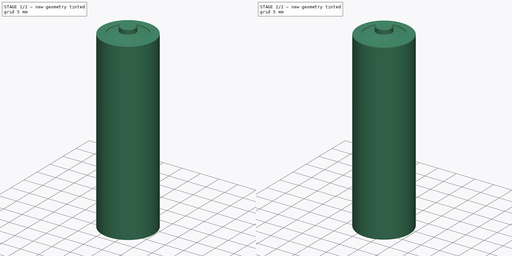
[diagram: build sequence overview — one tinted view per stage of 2, left to right]
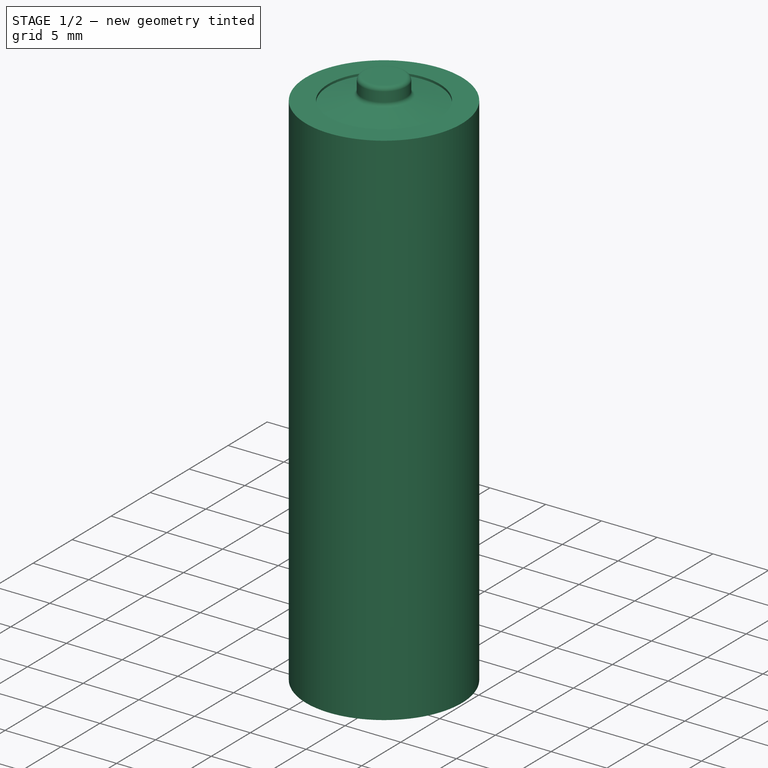
[diagram: stage 1 of 2 — iso view after this stage's code; geometry added in this stage tinted green]
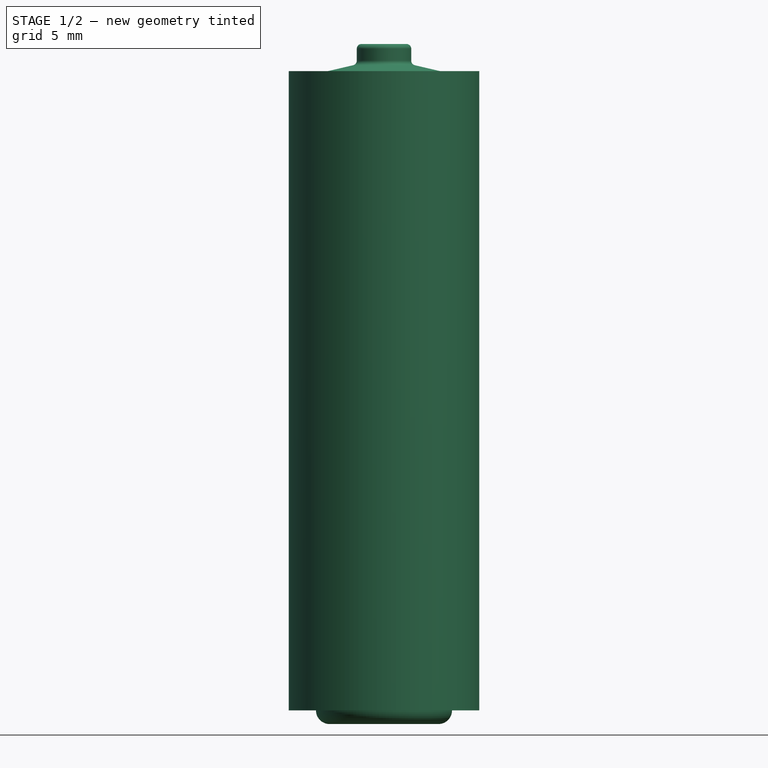
[diagram: stage 1 of 2 — front view after this stage's code; geometry added in this stage tinted green]
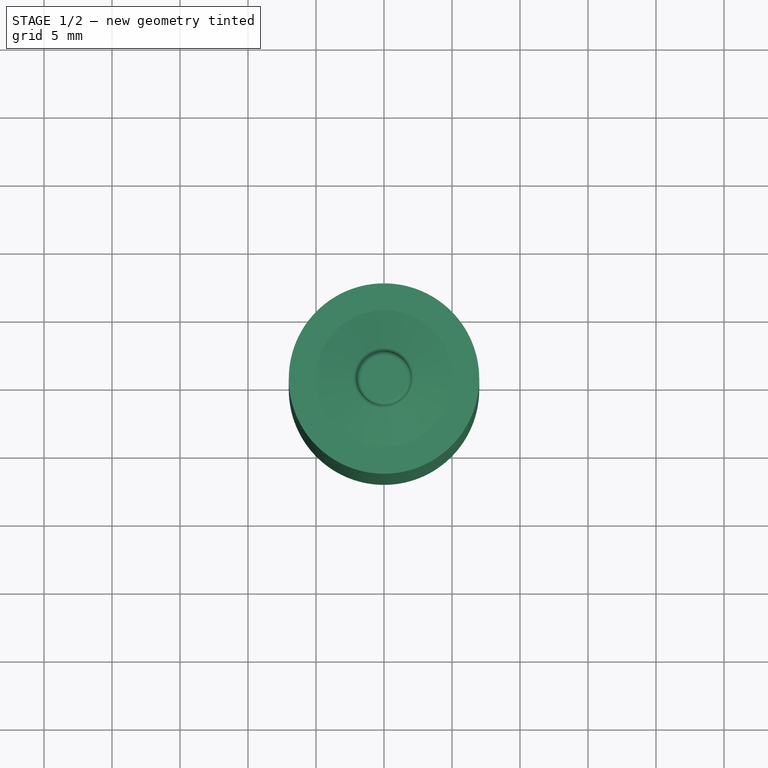
[diagram: stage 1 of 2 — top view after this stage's code; geometry added in this stage tinted green]
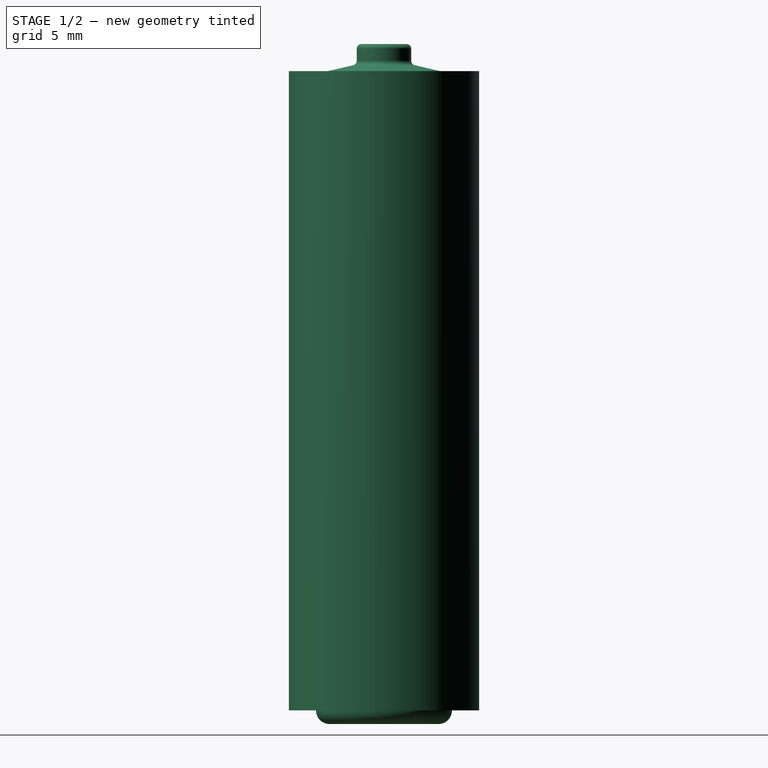
[diagram: stage 1 of 2 — right view after this stage's code; geometry added in this stage tinted green]
FCSTD DOCUMENT  (FreeCAD 0.19.4R1_voidlinux)
Label: battery_aa
License: All rights reserved
LicenseURL: http://en.wikipedia.org/wiki/All_rights_reserved
objects: PartDesign::Fillet×2, Sketcher::SketchObject×1, PartDesign::Revolution×1, PartDesign::Body×1, PartDesign::CoordinateSystem×1, App::Part×1
note: 9 computed .brp shape members not serialized (recipe doc carries the construction recipe); baked Part::Feature solids carry a one-line shape summary decoded from their .brp
EXTERNAL_REF file=master_animator.FCStd obj=Variables

FEATURE [Sketcher::SketchObject] Sketch
  FullyConstrained = true
  MapMode = 5
  Placement = pos=(0,0,0) rot=(1,0,0;1.5708rad)
  Support = -> [XZ_Plane001]
  sketch-geometry (10):
    g0: LineSegment StartX=0 StartY=0 StartZ=0 EndX=-4 EndY=7.32718e-11 EndZ=0
    g1: LineSegment StartX=-7 StartY=1 StartZ=0 EndX=-7 EndY=48 EndZ=0
    g2: LineSegment StartX=-7 StartY=48 StartZ=0 EndX=-5 EndY=48 EndZ=0
    g3: LineSegment StartX=-2 StartY=50 StartZ=0 EndX=0 EndY=50 EndZ=0
    g4: LineSegment StartX=-5 StartY=48 StartZ=0 EndX=-5 EndY=47.8 EndZ=0
    g5: LineSegment StartX=-5 StartY=47.8 StartZ=0 EndX=-2 EndY=48.5 EndZ=0
    g6: LineSegment StartX=-2 StartY=48.5 StartZ=0 EndX=-2 EndY=50 EndZ=0
    g7: LineSegment StartX=-7 StartY=1 StartZ=0 EndX=-4.99999 EndY=1 EndZ=0
    g8: ArcOfCircle CenterX=-3.99999 CenterY=1 CenterZ=0 NormalX=0 NormalY=0 NormalZ=1 AngleXU=0 Radius=1 StartAngle=3.14159 EndAngle=4.71238
    g9: LineSegment StartX=0 StartY=50 StartZ=0 EndX=0 EndY=0 EndZ=0
  constraints (30):
    c: Coincident(g0,g-1)
    c: PointOnObject(g0,g-1)
    c: Vertical(g1)
    c: Coincident(g2,g1)
    c: Horizontal(g2)
    c: PointOnObject(g3,g-2)
    c: Horizontal(g3)
    c: Distance(g3,g0) = 50
    c: Distance(g3,g3) = 2
    c: Distance(g0,g0) = 4
    c: Distance(g1) = 47
    c: DistanceY(g0,g1) = 1
    c: Coincident(g4,g2)
    c: Vertical(g4)
    c: Distance(g4) = 0.2
    c: Coincident(g5,g4)
    c: Coincident(g6,g5)
    c: Coincident(g6,g3)
    c: DistanceY(g5,g3) = 1.5
    c: Distance(g2) = 2
    c: DistanceX(g2,g5) = 3
    c: DistanceX(g1,g0) = 7
    c: Coincident(g7,g1)
    c: Horizontal(g7)
    c: Coincident(g8,g7)
    c: Coincident(g8,g0)
    c: Perpendicular(g8,g7)
    c: Tangent(g8,g0)
    c: Coincident(g9,g3)
    c: Coincident(g9,g0)
FEATURE [PartDesign::Revolution] Revolution
  Angle = 360
  Axis = (0,-2e-16,1)
  Base = (0,0,0)
  Placement = pos=(0,0,0) rot=(1,0,0;1.5708rad)
  Profile = -> Sketch
  ReferenceAxis = -> Sketch [V_Axis]
FEATURE [PartDesign::Fillet] Fillet
  Base = -> Revolution [Edge9,Edge7]
  BaseFeature = -> Revolution
  Placement = pos=(0,0,0) rot=(1,0,0;1.5708rad)
  Radius = 0.35
  SupportTransform = false
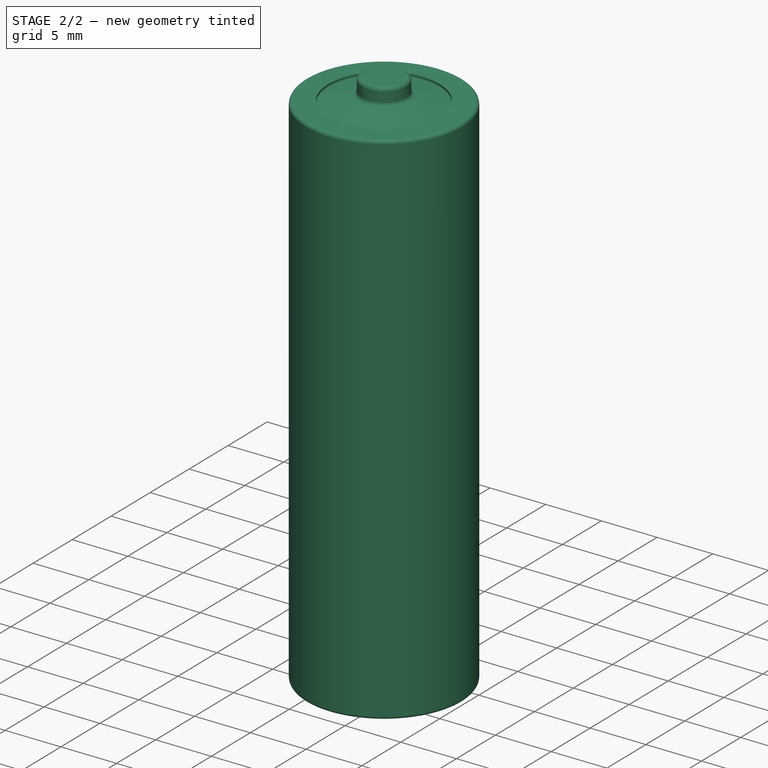
[diagram: stage 2 of 2 — iso view after this stage's code; geometry added in this stage tinted green]
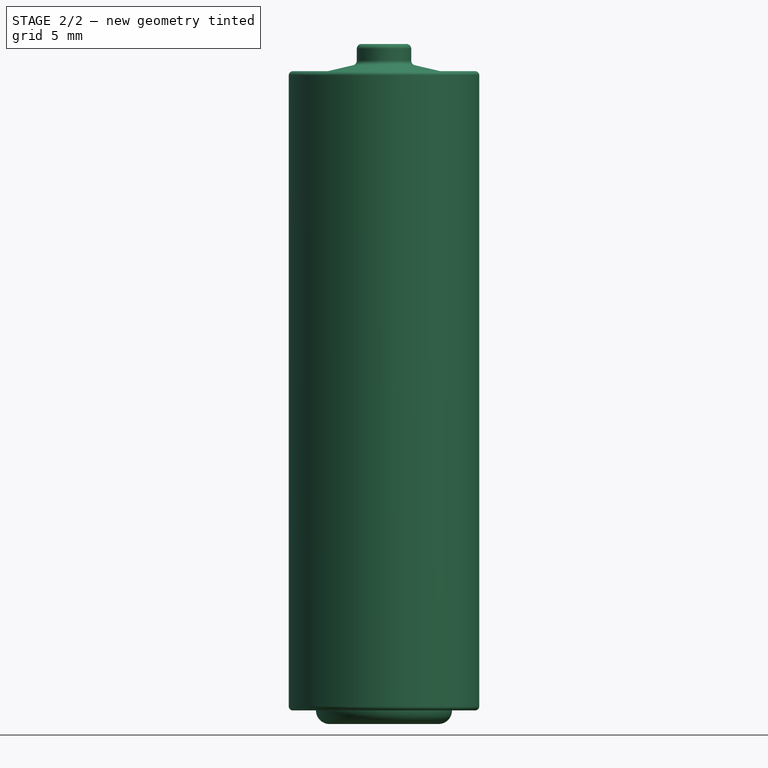
[diagram: stage 2 of 2 — front view after this stage's code; geometry added in this stage tinted green]
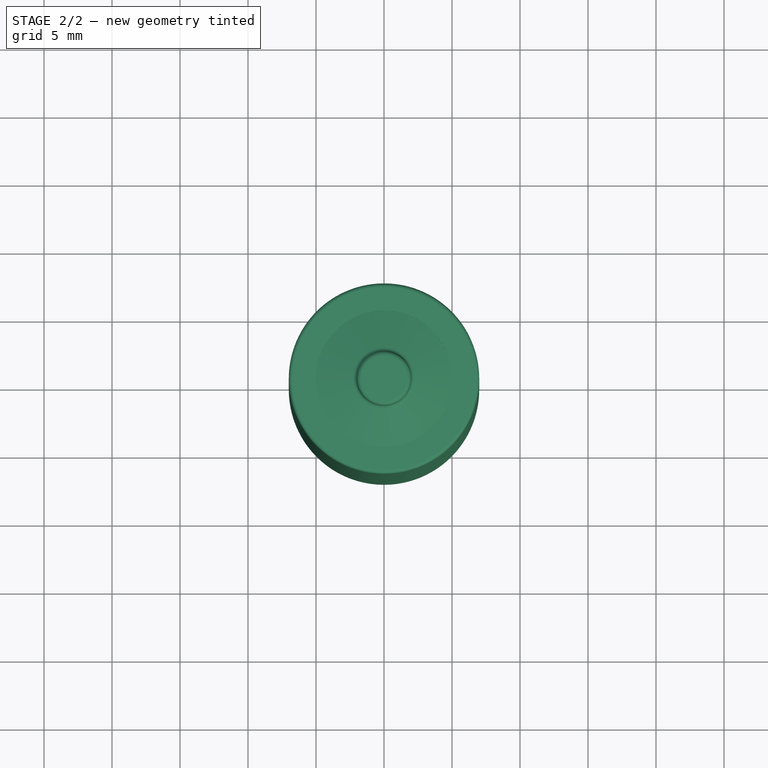
[diagram: stage 2 of 2 — top view after this stage's code; geometry added in this stage tinted green]
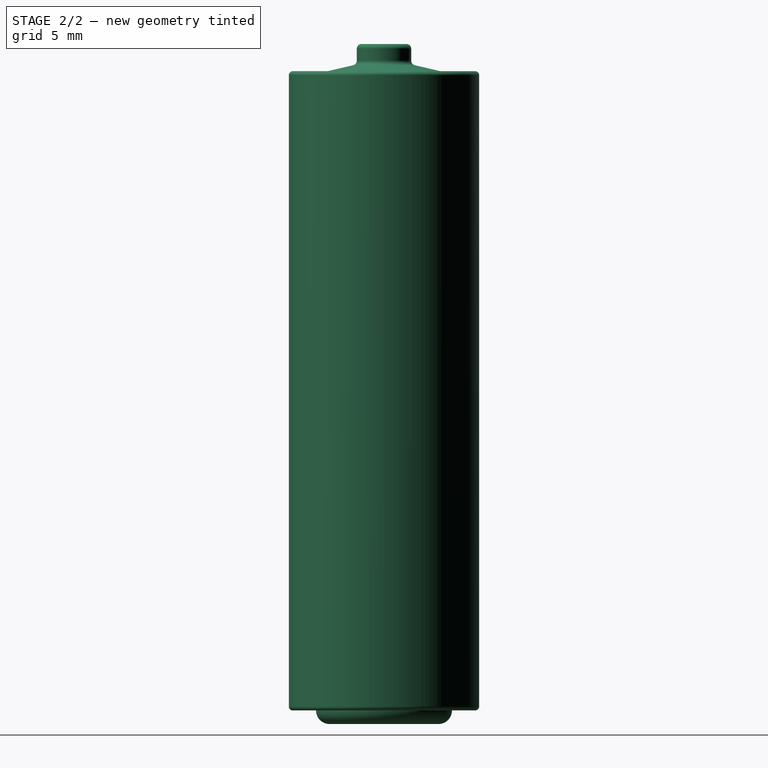
[diagram: stage 2 of 2 — right view after this stage's code; geometry added in this stage tinted green]
FEATURE [PartDesign::Fillet] Fillet001
  Base = -> Fillet [Edge13,Edge10]
  BaseFeature = -> Fillet
  Placement = pos=(0,0,0) rot=(1,0,0;1.5708rad)
  Radius = 0.3
  SupportTransform = false
FEATURE [PartDesign::Body] Body
  Group = -> [Sketch,Revolution,Fillet,Fillet001]
  Origin = -> Origin001
  Tip = -> Fillet001
FEATURE [PartDesign::CoordinateSystem] LCS_plus_center
  AttacherType = Attacher::AttachEngine3D
  MapMode = 11
  Placement = pos=(0,0,50) rot=(0,0,-1;1.5708rad)
  Support = -> [Fillet001]
  expr: .AttachmentOffset.Base.x = -master_animator#Variables.explode * 2
FEATURE [App::Part] Part  label="battery_aa"
  Group = -> [Body,LCS_plus_center]
  Origin = -> Origin
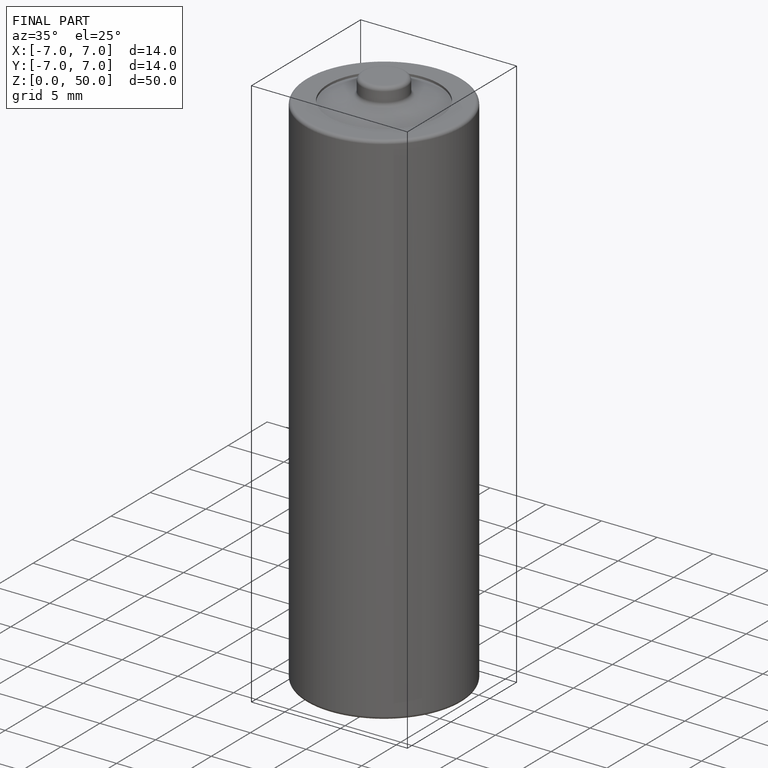
[diagram: finished part — iso view with bounding-box wireframe]
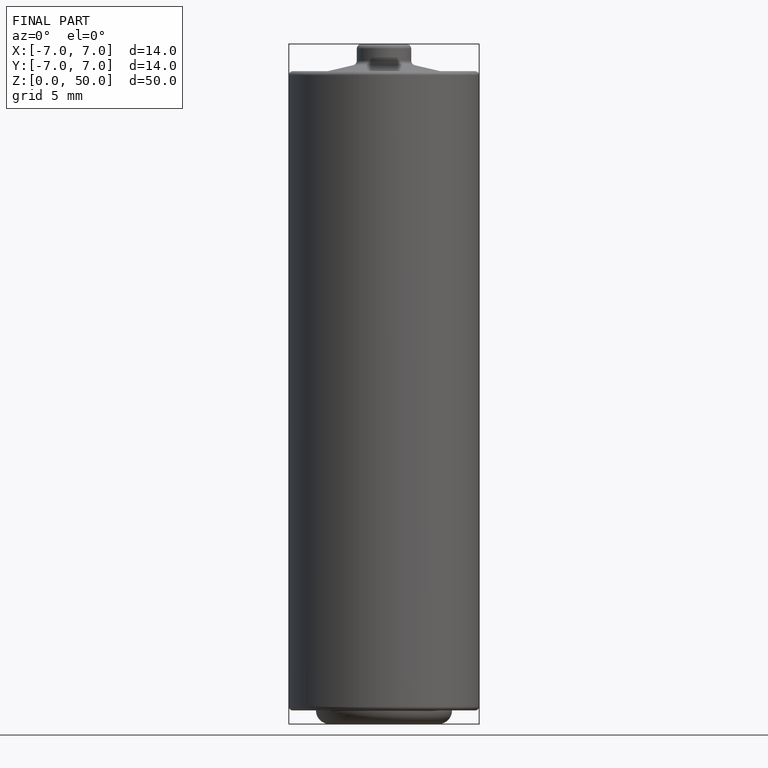
[diagram: finished part — front view with bounding-box wireframe]
